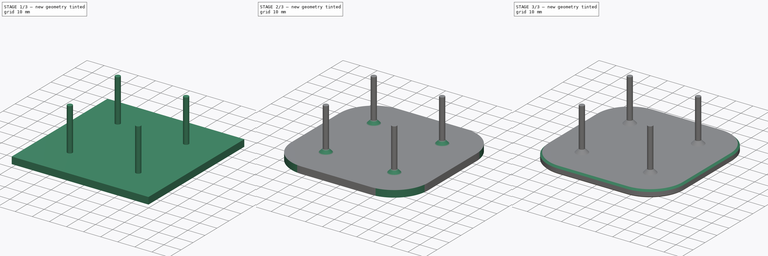
[diagram: build sequence overview — one tinted view per stage of 3, left to right]
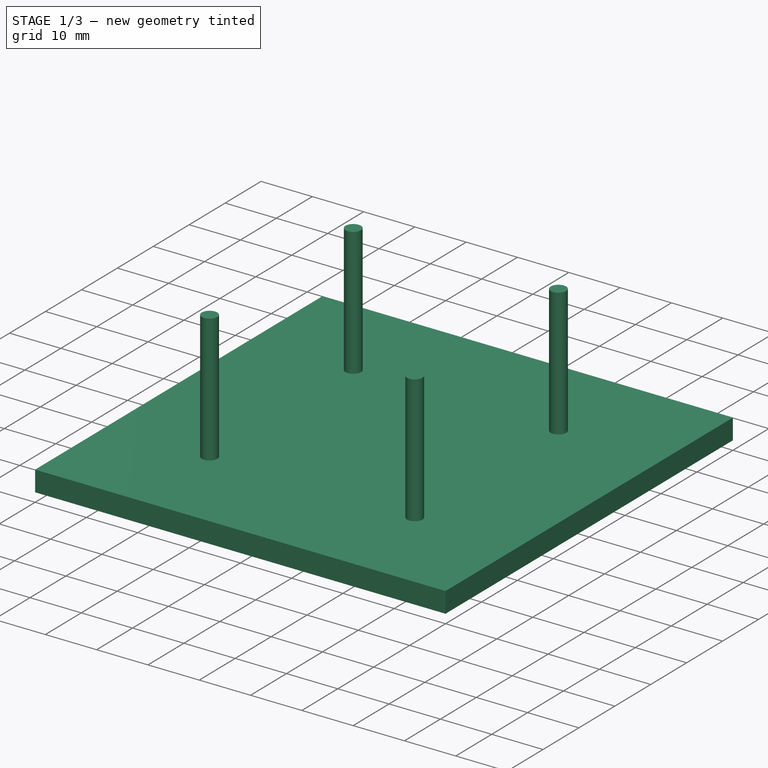
[diagram: stage 1 of 3 — iso view after this stage's code; geometry added in this stage tinted green]
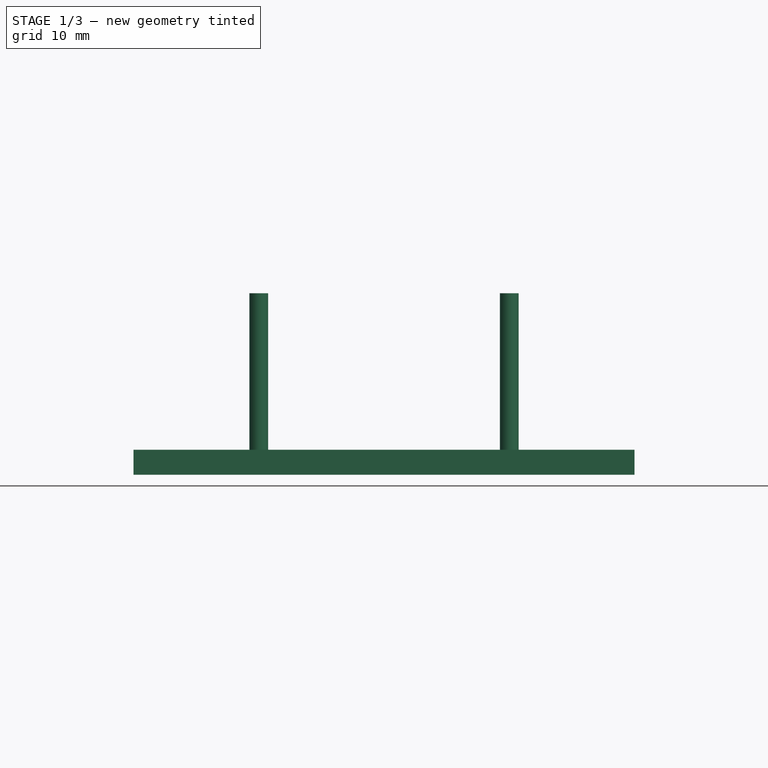
[diagram: stage 1 of 3 — front view after this stage's code; geometry added in this stage tinted green]
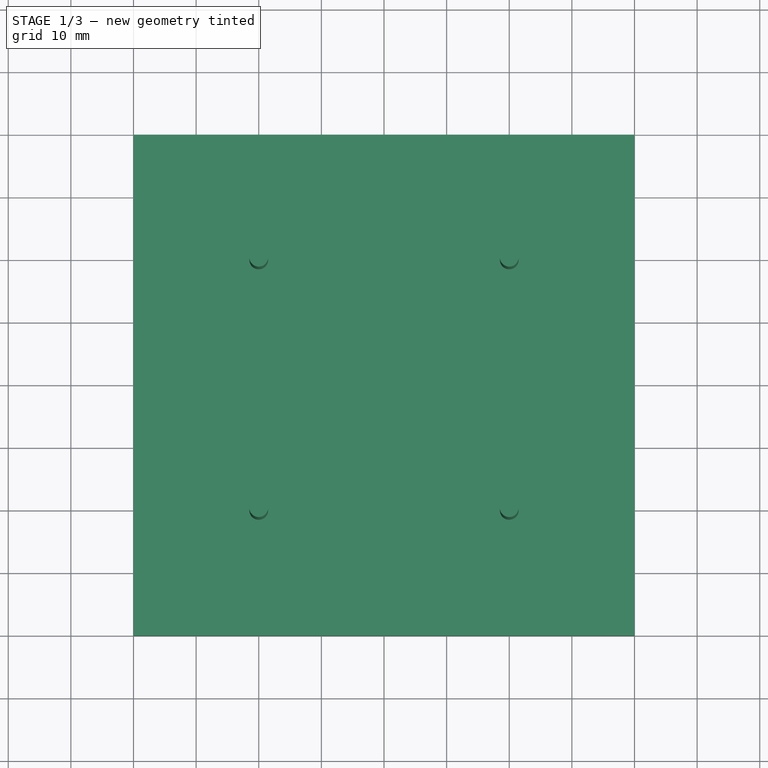
[diagram: stage 1 of 3 — top view after this stage's code; geometry added in this stage tinted green]
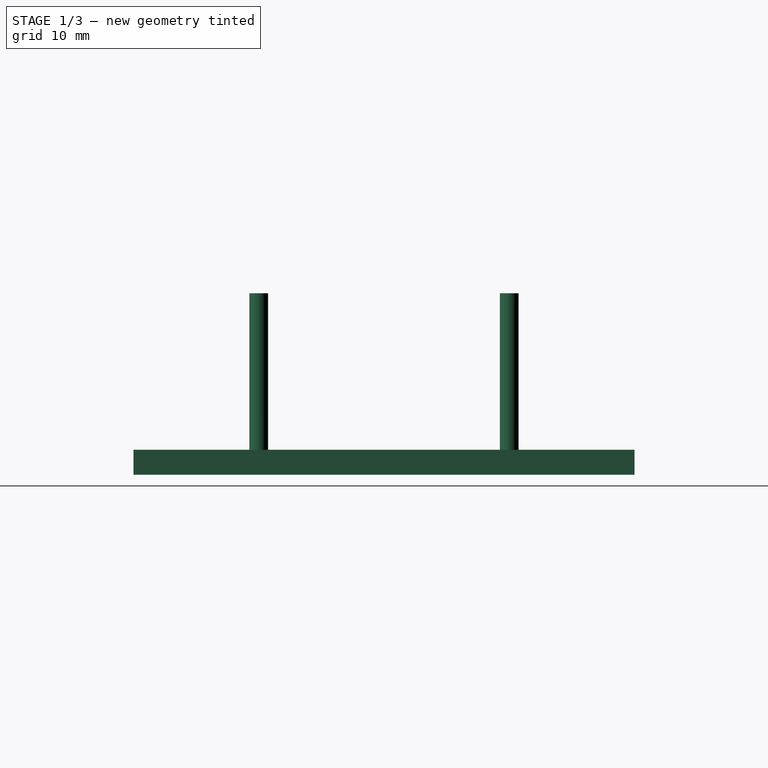
[diagram: stage 1 of 3 — right view after this stage's code; geometry added in this stage tinted green]
FCSTD DOCUMENT  (FreeCAD 0.16R6706 (Git))
Label: porte brossette
License: All rights reserved
LicenseURL: http://en.wikipedia.org/wiki/All_rights_reserved
objects: PartDesign::Chamfer×3, Sketcher::SketchObject×2, PartDesign::Pad×2, Drawing::FeatureViewPart×2, PartDesign::Fillet×1, Drawing::FeaturePage×1
note: 10 computed .brp shape members not serialized (recipe doc carries the construction recipe); baked Part::Feature solids carry a one-line shape summary decoded from their .brp

FEATURE [Sketcher::SketchObject] Sketch
  sketch-geometry (4):
    g0: LineSegment StartX=0 StartY=80 StartZ=0 EndX=80 EndY=80 EndZ=0
    g1: LineSegment StartX=80 StartY=80 StartZ=0 EndX=80 EndY=0 EndZ=0
    g2: LineSegment StartX=80 StartY=0 StartZ=0 EndX=0 EndY=0 EndZ=0
    g3: LineSegment StartX=0 StartY=0 StartZ=0 EndX=0 EndY=80 EndZ=0
  constraints (12):
    c: Coincident(g0,g1)
    c: Coincident(g1,g2)
    c: Coincident(g2,g3)
    c: Coincident(g3,g0)
    c: Horizontal(g0)
    c: Horizontal(g2)
    c: Vertical(g1)
    c: Vertical(g3)
    c: PointOnObject(g0,g-2)
    c: PointOnObject(g1,g-1)
    c: DistanceY(g1,g1) = 80
    c: DistanceX(g0,g0) = 80
FEATURE [PartDesign::Pad] Pad
  Length = 4
  Length2 = 100
  Sketch = -> Sketch
  Type = 0
FEATURE [Sketcher::SketchObject] Sketch001
  Placement = pos=(0,0,4) rot=(0,0,1;0rad)
  Support = -> Pad [Face6]
  sketch-geometry (4):
    g0: Circle CenterX=60 CenterY=60 CenterZ=0 NormalX=0 NormalY=0 NormalZ=1 Radius=1.5
    g1: Circle CenterX=20 CenterY=60 CenterZ=0 NormalX=0 NormalY=0 NormalZ=1 Radius=1.5
    g2: Circle CenterX=20 CenterY=20 CenterZ=0 NormalX=0 NormalY=0 NormalZ=1 Radius=1.5
    g3: Circle CenterX=60 CenterY=20 CenterZ=0 NormalX=0 NormalY=0 NormalZ=1 Radius=1.5
  constraints (12):
    c: Equal(g2,g3)
    c: Equal(g3,g1)
    c: Equal(g1,g0)
    c: DistanceY(g-1,g2) = 20
    c: DistanceY(g-1,g3) = 20
    c: DistanceX(g-1,g0) = 60
    c: DistanceX(g1) = 20
    c: DistanceX(g-1,g3) = 60
    c: DistanceX(g-1,g2) = 20
    c: DistanceY(g-1,g1) = 60
    c: DistanceY(g-1,g0) = 60
    c: Radius(g2) = 1.5
FEATURE [PartDesign::Pad] Pad001
  Length = 25
  Length2 = 100
  Sketch = -> Sketch001
  Type = 0
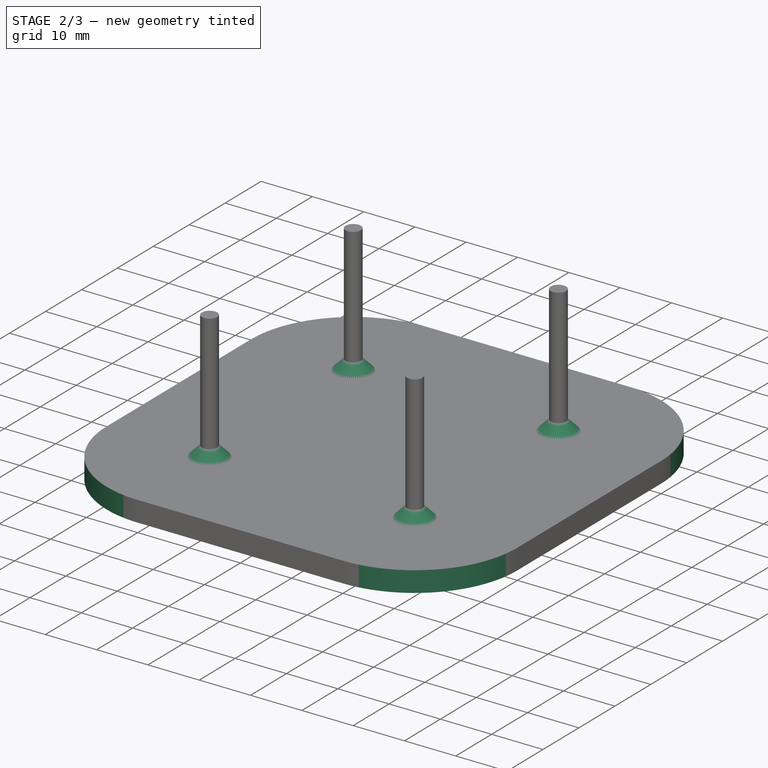
[diagram: stage 2 of 3 — iso view after this stage's code; geometry added in this stage tinted green]
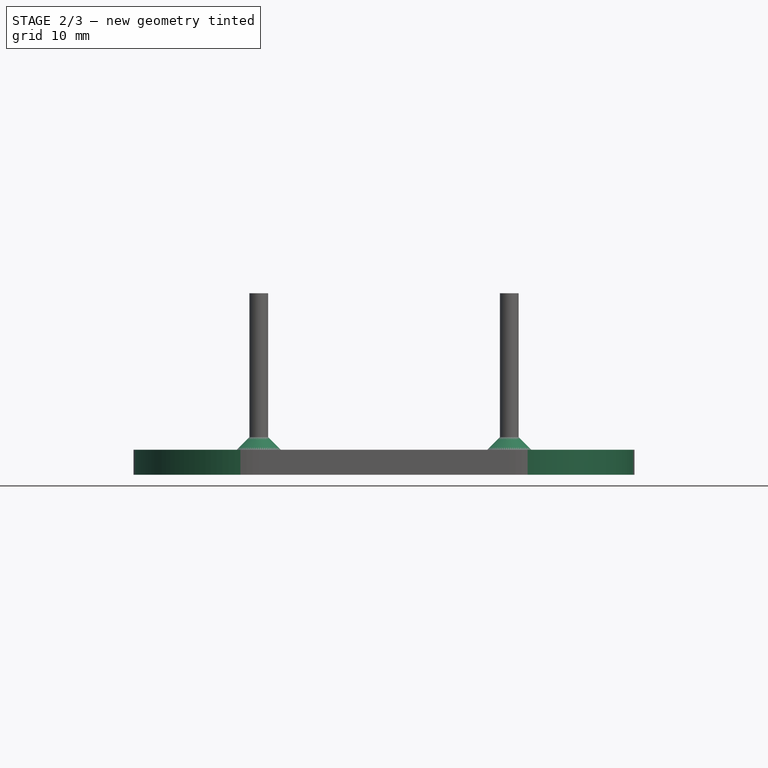
[diagram: stage 2 of 3 — front view after this stage's code; geometry added in this stage tinted green]
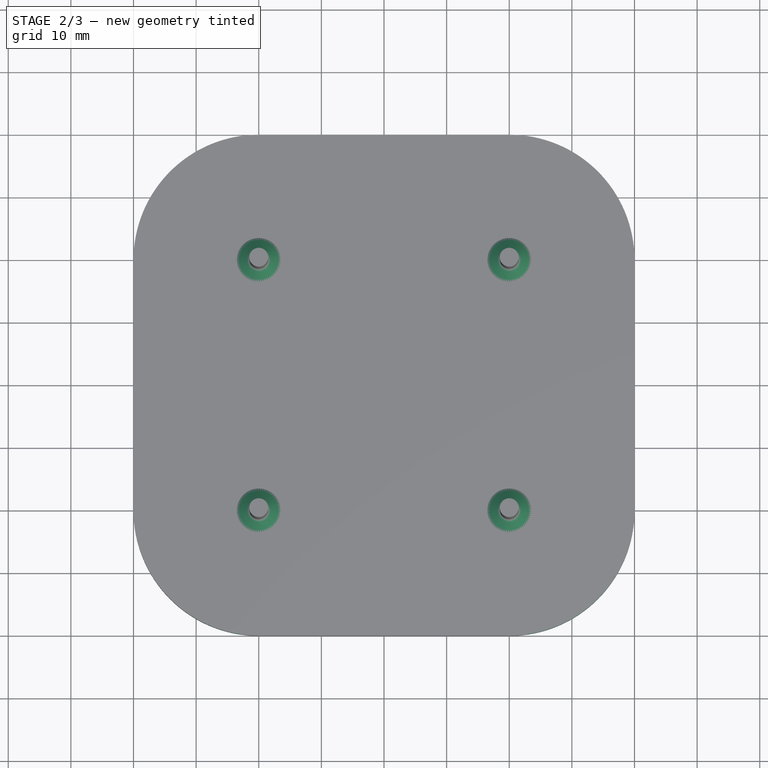
[diagram: stage 2 of 3 — top view after this stage's code; geometry added in this stage tinted green]
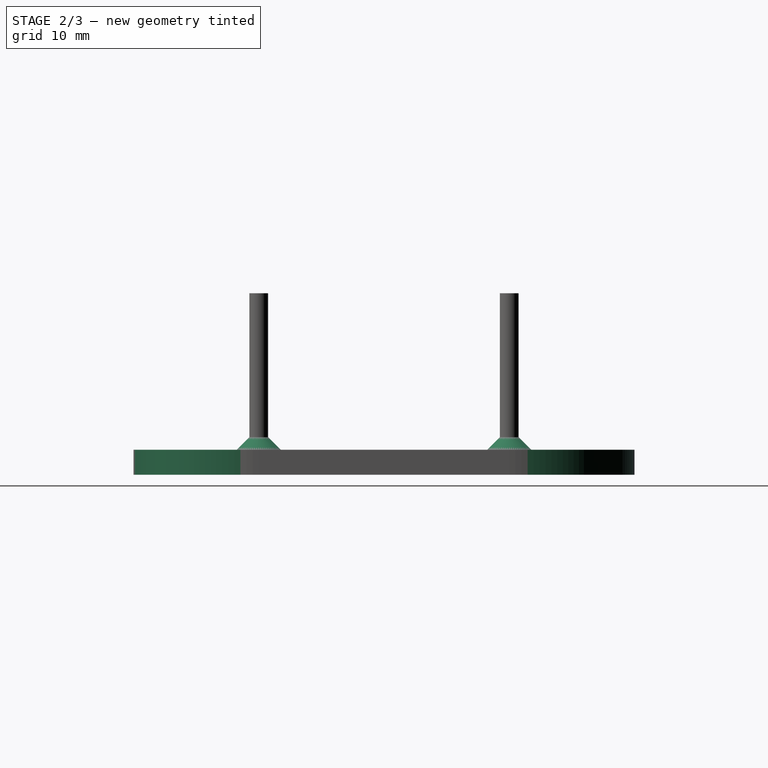
[diagram: stage 2 of 3 — right view after this stage's code; geometry added in this stage tinted green]
FEATURE [PartDesign::Fillet] Fillet
  Base = -> Pad001 [Edge8,Edge2,Edge5,Edge1]
  Radius = 20
FEATURE [PartDesign::Chamfer] Chamfer
  Base = -> Fillet [Edge24,Edge23,Edge21,Edge22]
  Size = 2
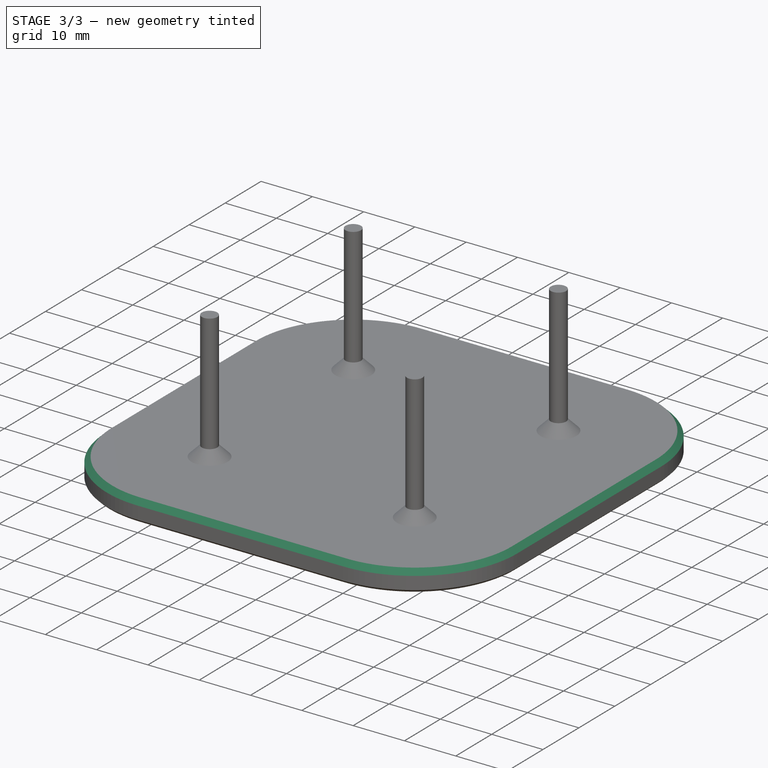
[diagram: stage 3 of 3 — iso view after this stage's code; geometry added in this stage tinted green]
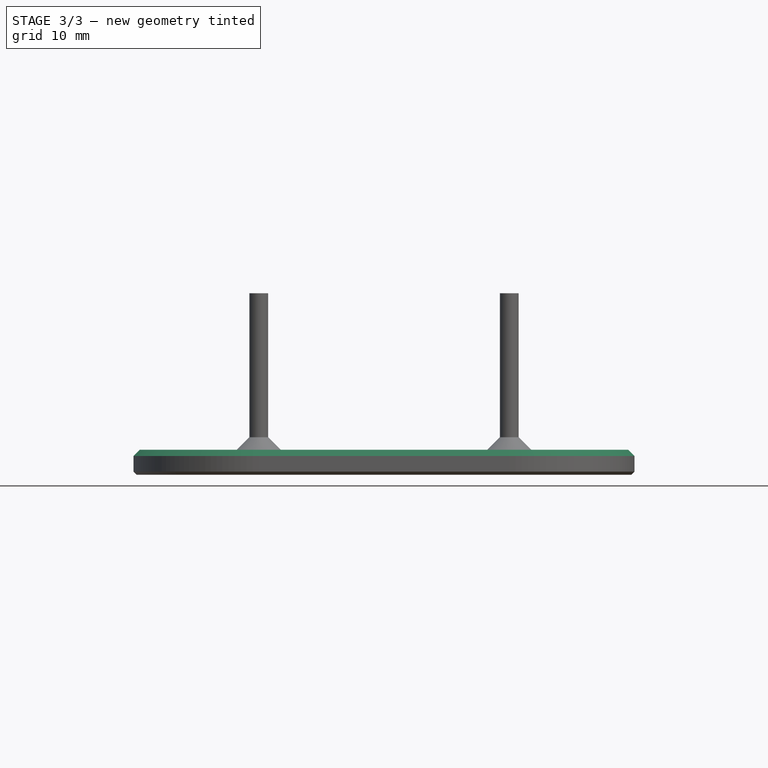
[diagram: stage 3 of 3 — front view after this stage's code; geometry added in this stage tinted green]
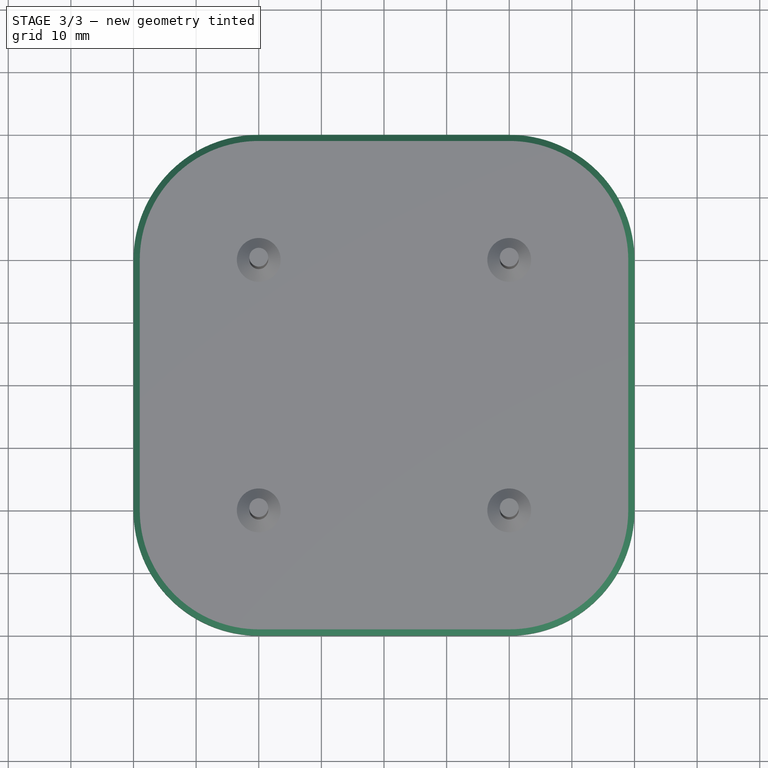
[diagram: stage 3 of 3 — top view after this stage's code; geometry added in this stage tinted green]
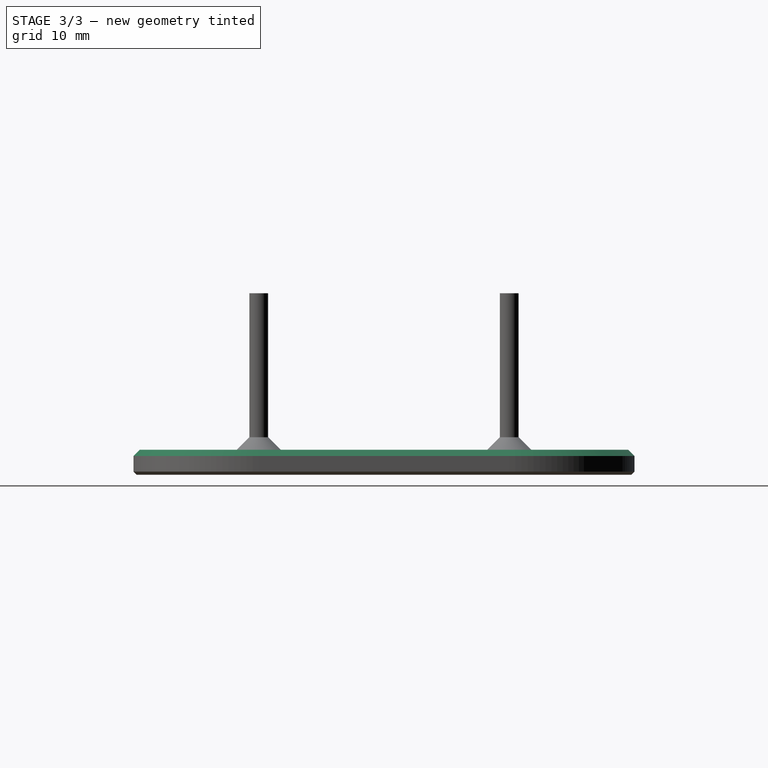
[diagram: stage 3 of 3 — right view after this stage's code; geometry added in this stage tinted green]
FEATURE [PartDesign::Chamfer] Chamfer001
  Base = -> Chamfer [Edge15,Edge18,Edge20,Edge22,Edge24,Edge26,Edge28,Edge30]
  Size = 0.5
FEATURE [PartDesign::Chamfer] Chamfer002
  Base = -> Chamfer001 [Edge16,Edge14,Edge12,Edge3,Edge6,Edge13,Edge15,Edge17]
  Size = 1
FEATURE [Drawing::FeatureViewPart] Ortho  label="Ortho_0_0"
  Direction = (1,0,0)
  HiddenWidth = 0.15
  LineWidth = 0.35
  Rotation = -90
  ShowHiddenLines = false
  ShowSmoothLines = false
  Source = -> Chamfer002
  Tolerance = 0.05
  ViewResult = <blob: 4636 chars omitted>
  Visible = true
  X = 70
  Y = 64.5
FEATURE [Drawing::FeatureViewPart] Ortho003  label="Ortho_0_-1"
  Direction = (0,0,1)
  HiddenWidth = 0.15
  LineWidth = 0.35
  Rotation = 90
  ShowHiddenLines = false
  ShowSmoothLines = false
  Source = -> Chamfer002
  Tolerance = 0.05
  ViewResult = <g id="Ortho_0_-1"\n   transform="rotate(90,70,110) translate(70,110) scale(1,1)"\n  >\n<g   stroke="rgb(0, 0, 0)"\n   stroke-width="0.35"\n   stroke-linecap="butt"\n   stroke-linejoin="miter"\n   fill="none"\n   transform="scale(1,-1)"\n  >\n<path id= "1" d=" M 20 80 L 60 80 " />\n<path d="M-3.55271e-015 60 A20 20 0 0 0 20 80" /><path id= "3" d=" M 20 79 L 60 79 " />\n<path d="M60 80 A20 20 0 0 0 80 60" /><path d="M1 60 A19 19 0 0 0 20 79" /><path id= "6" d=" M 0 20 L 0 60 " />\n<path d="M79 20 A19 19 0 0 0 60 1" /><path id= "8" d=" M 79 60 L 79 20 " />\n<path id= "9" d=" M 60 1 L 20 1 " />\n<path d="M60 79 A19 19 0 0 0 79 60" /><path d="M20 1 A19 19 0 0 0 1 20" /><path id= "12" d=" M 1 20 L 1 60 " />\n<circle cx ="60" cy ="20" r ="3.5" /><circle cx ="20" cy ="20" r ="3.5" /><circle cx ="20" cy ="60" r ="3.5" /><circle cx ="60" cy ="60" r ="3.5" /><path id= "17" d=" M 80 60 L 80 20 " />\n<path d="M20 0 A20 20 0 0 0 -3.55271e-015 20" /><path d="M80 20 A20 20 0 0 0 60 0" /><path id= "20" d=" M 60 0 L 20 0 " />\n<circle cx ="60" cy ="20" r ="1.5" /><circle cx ="60" cy ="20" r ="1.5" /><circle cx ="20" cy ="20" r ="1.5" /><circle cx ="20" cy ="60" r ="1.5" /><circle cx ="60" cy ="60" r ="1.5" /></g>\n</g>
  Visible = true
  X = 70
  Y = 110
FEATURE [Drawing::FeaturePage] Page
  EditableTexts = Emmanuel Gilloz | Toothbrush Head Stand | Designed for Additive Manufacturing | With a RepRap or FFF machine | A4 | 1 / 1 | 1:1 | 001 | 001 | 27/08/2017 | REV A
  Group = -> [Ortho,Ortho003]
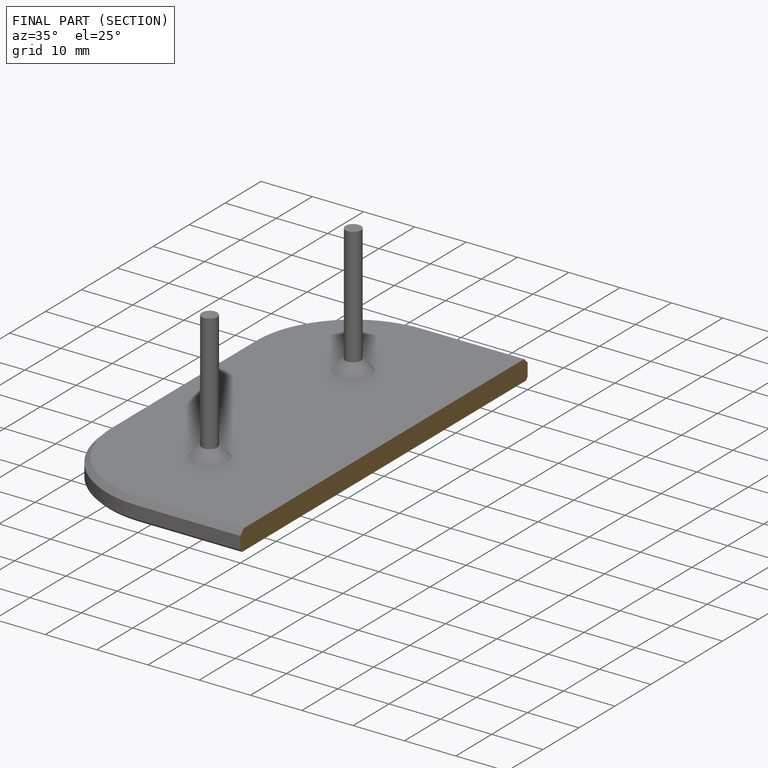
[diagram: finished part — half-section view (interior)]
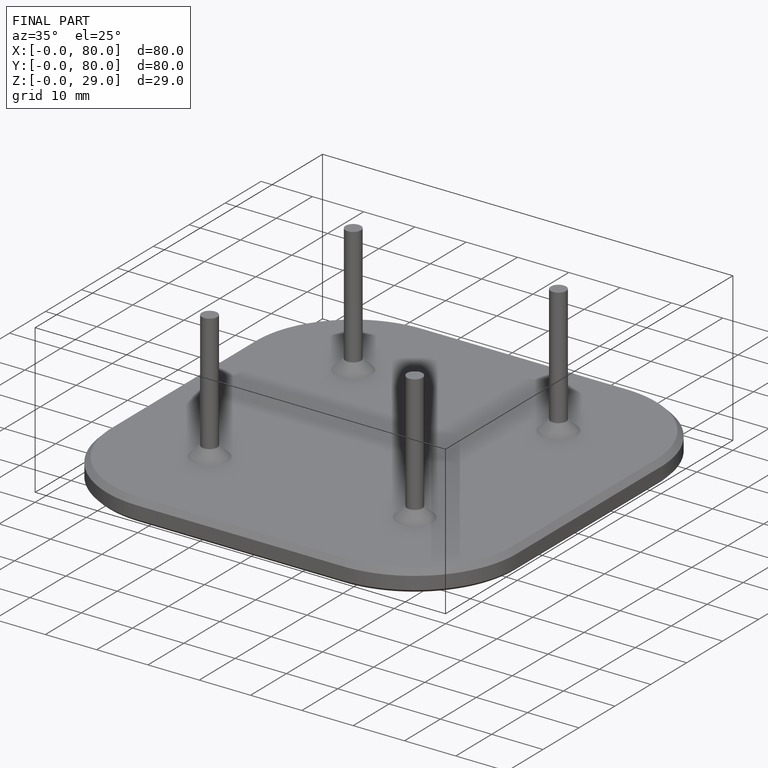
[diagram: finished part — iso view with bounding-box wireframe]
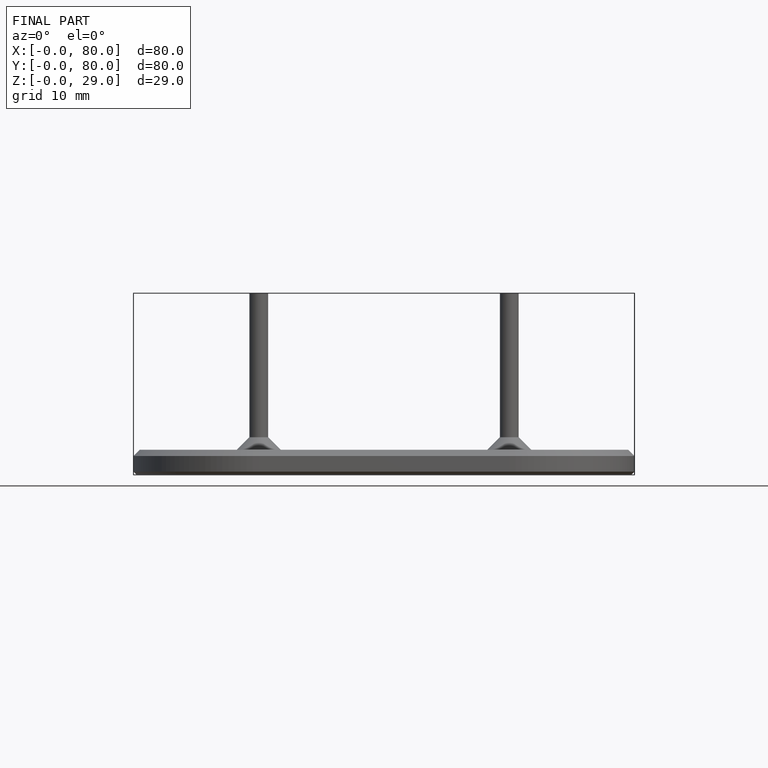
[diagram: finished part — front view with bounding-box wireframe]
